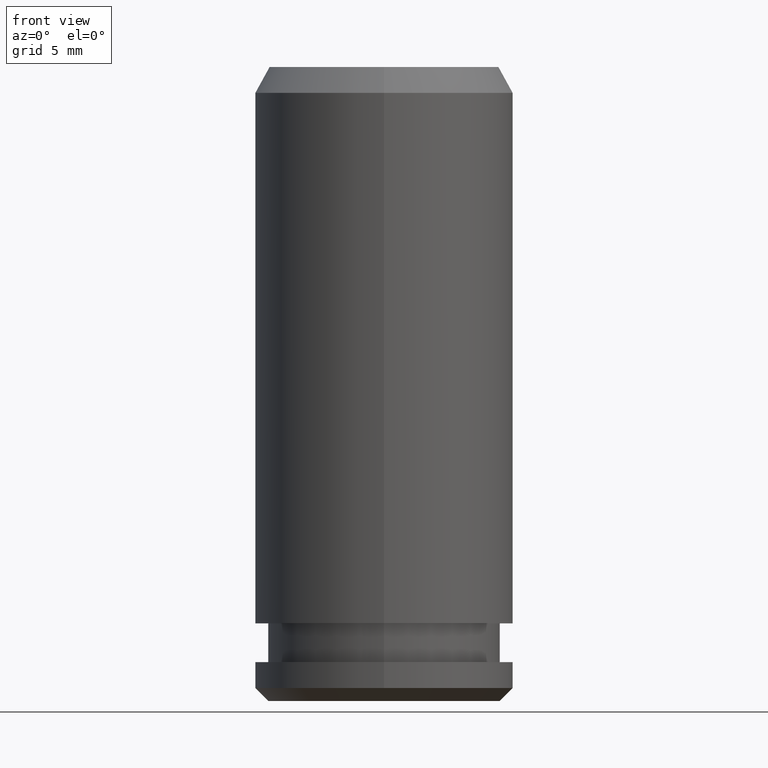
[diagram: clean part render]
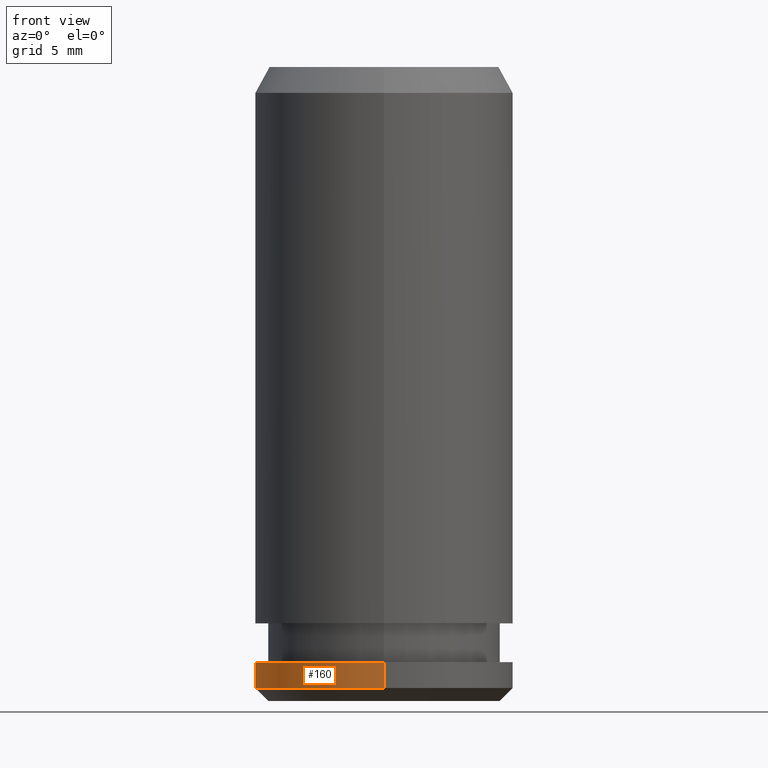
[diagram: same view with one face highlighted and labeled with its STEP entity id]
A machine part, front view. The second image highlights one B-rep face of the part: STEP entity #160.
In plain terms, the highlighted cylindrical surface (partial cylindrical patch) has radius 5 mm, axis along (0, -0, -1).
Its self-contained STEP definition (entity closure, byte-faithful):
#110=EDGE_CURVE('NONE',#162,#138,#281,.T.);
#126=EDGE_CURVE('NONE',#146,#218,#297,.T.);
#138=VERTEX_POINT('NONE',#311);
#146=VERTEX_POINT('NONE',#321);
#160=ADVANCED_FACE('NONE',(#339),#340,.T.);
#162=VERTEX_POINT('NONE',#342);
#172=EDGE_CURVE('NONE',#218,#138,#352,.T.);
#218=VERTEX_POINT('NONE',#404);
#222=EDGE_CURVE('NONE',#146,#162,#409,.T.);
#281=LINE('',#464,#465);
#297=LINE('',#489,#490);
#311=CARTESIAN_POINT('',(-6.12303176911189E-016,5.0,0.5));
#321=CARTESIAN_POINT('',(0.0,-5.0,1.5));
#339=FACE_OUTER_BOUND('',#541,.T.);
#340=CYLINDRICAL_SURFACE('',#542,5.0);
#342=CARTESIAN_POINT('',(-6.12303176911189E-016,5.0,1.5));
#352=CIRCLE('',#558,5.0);
#404=CARTESIAN_POINT('',(0.0,-5.0,0.5));
#409=CIRCLE('',#631,5.0);
#464=CARTESIAN_POINT('',(-6.12303176911189E-016,5.0,-1.13644490972339));
#465=VECTOR('',#693,1000.0);
#489=CARTESIAN_POINT('',(0.0,-5.0,-1.13644490972339));
#490=VECTOR('',#705,1000.0);
#541=EDGE_LOOP('',(#767,#768,#769,#770));
#542=AXIS2_PLACEMENT_3D('',#771,#772,#773);
#558=AXIS2_PLACEMENT_3D('',#778,#779,#780);
#631=AXIS2_PLACEMENT_3D('',#854,#855,#856);
#693=DIRECTION('',(0.0,0.0,-1.0));
#705=DIRECTION('',(0.0,0.0,-1.0));
#767=ORIENTED_EDGE('',*,*,#222,.T.);
#768=ORIENTED_EDGE('',*,*,#110,.T.);
#769=ORIENTED_EDGE('',*,*,#172,.F.);
#770=ORIENTED_EDGE('',*,*,#126,.F.);
#771=CARTESIAN_POINT('',(0.0,0.0,-1.13644490972339));
#772=DIRECTION('',(0.0,-0.0,-1.0));
#773=DIRECTION('',(0.0,-1.0,0.0));
#778=CARTESIAN_POINT('',(0.0,0.0,0.5));
#779=DIRECTION('',(0.0,0.0,-1.0));
#780=DIRECTION('',(0.0,-1.0,0.0));
#854=CARTESIAN_POINT('',(0.0,0.0,1.5));
#855=DIRECTION('',(0.0,0.0,-1.0));
#856=DIRECTION('',(0.0,-1.0,0.0));